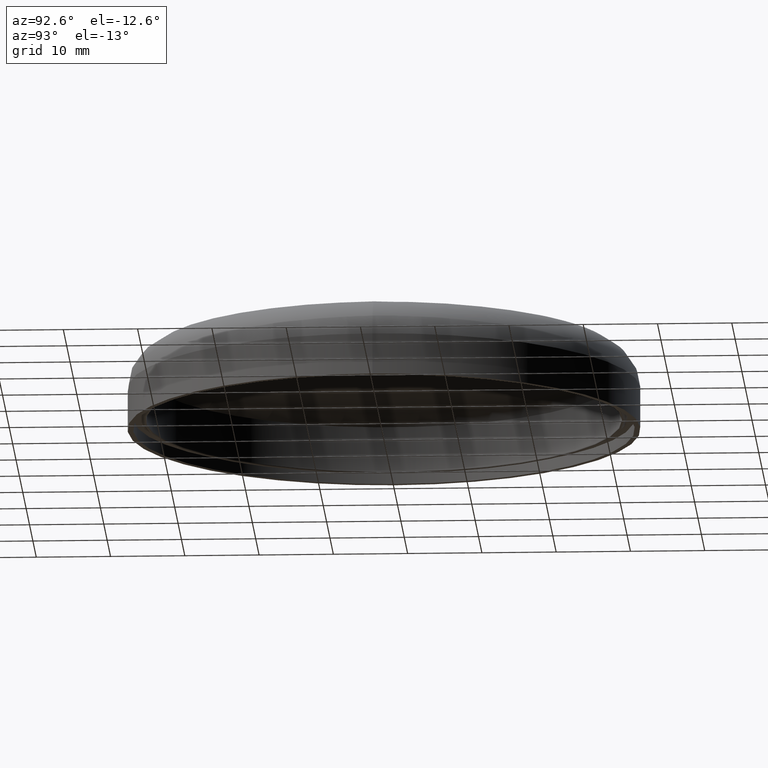
[diagram: clean part render]
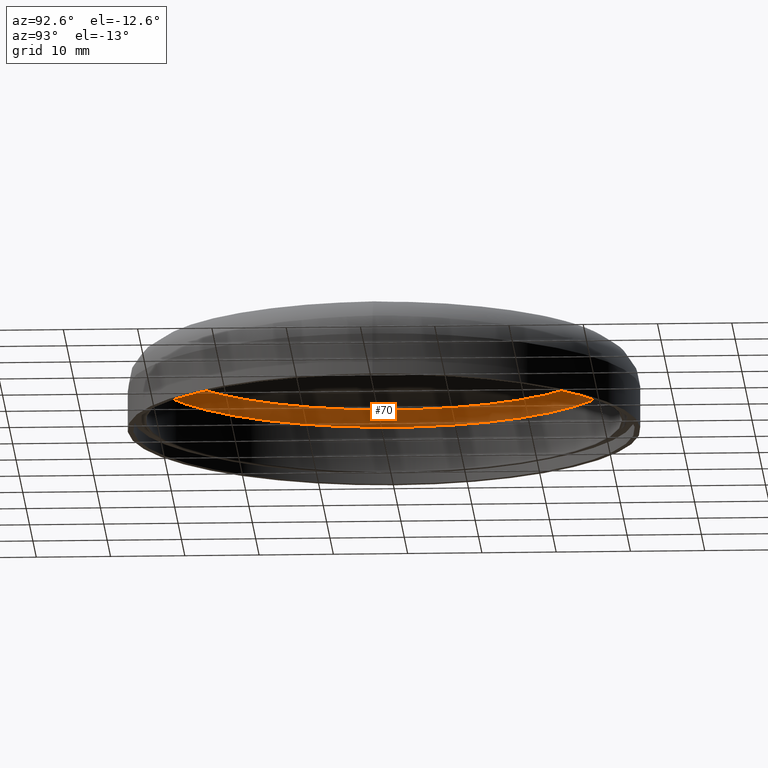
[diagram: same view with one face highlighted and labeled with its STEP entity id]
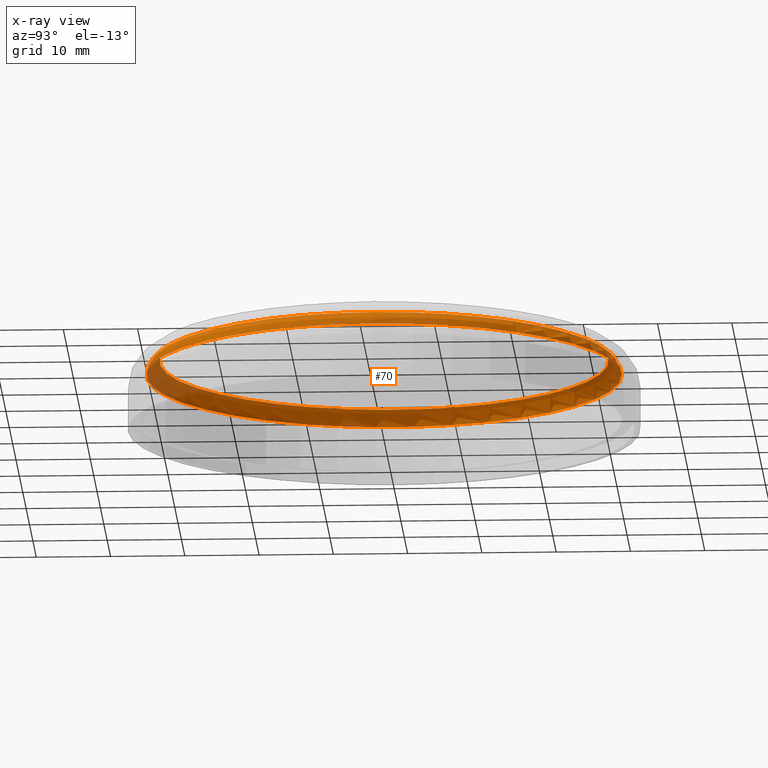
[diagram: x-ray of the same camera — body ghosted, the highlighted face saturated]
A machine part, auxiliary view. The second image highlights one B-rep face of the part: STEP entity #70.
The next image is the same camera in x-ray: the body ghosted, the highlighted face saturated — about 14% of this face is hidden behind the body in this view.
In plain terms, the highlighted toroidal blend (fillet) surface has major radius 30 mm and minor (blend) radius 2 mm.
Its self-contained STEP definition (entity closure, byte-faithful):
#42=TOROIDAL_SURFACE('',#166,30.,2.00000000000002);
#59=FACE_BOUND('',#93,.T.);
#60=FACE_BOUND('',#94,.T.);
#70=ADVANCED_FACE('',(#59,#60),#42,.F.);
#93=EDGE_LOOP('',(#113));
#94=EDGE_LOOP('',(#114));
#113=ORIENTED_EDGE('',*,*,#134,.F.);
#114=ORIENTED_EDGE('',*,*,#135,.T.);
#124=VERTEX_POINT('',#238);
#125=VERTEX_POINT('',#241);
#134=EDGE_CURVE('',#124,#124,#144,.T.);
#135=EDGE_CURVE('',#125,#125,#145,.T.);
#144=CIRCLE('',#163,32.);
#145=CIRCLE('',#165,30.2080070739544);
#163=AXIS2_PLACEMENT_3D('',#237,#202,#203);
#165=AXIS2_PLACEMENT_3D('',#240,#206,#207);
#166=AXIS2_PLACEMENT_3D('',#242,#208,#209);
#202=DIRECTION('',(0.,0.,1.));
#203=DIRECTION('',(1.,0.,0.));
#206=DIRECTION('',(0.,0.,1.));
#207=DIRECTION('',(1.,0.,0.));
#208=DIRECTION('',(0.,0.,1.));
#209=DIRECTION('',(1.,0.,0.));
#237=CARTESIAN_POINT('',(0.,0.,7.4357053033965));
#238=CARTESIAN_POINT('',(32.,0.,7.4357053033965));
#240=CARTESIAN_POINT('',(0.,0.,9.42485915796806));
#241=CARTESIAN_POINT('',(30.2080070739544,0.,9.42485915796806));
#242=CARTESIAN_POINT('',(0.,0.,7.4357053033965));